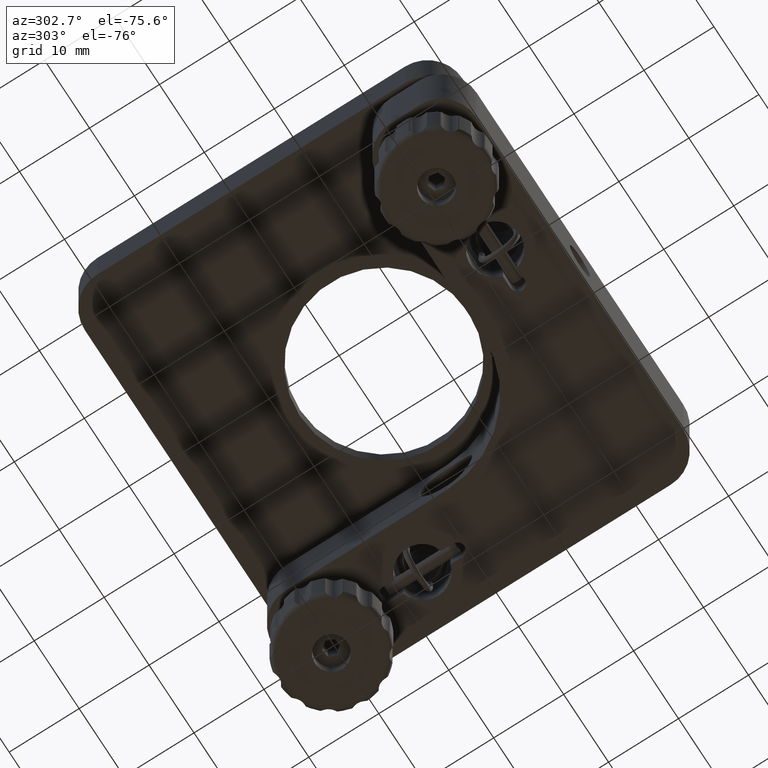
[diagram: clean part render]
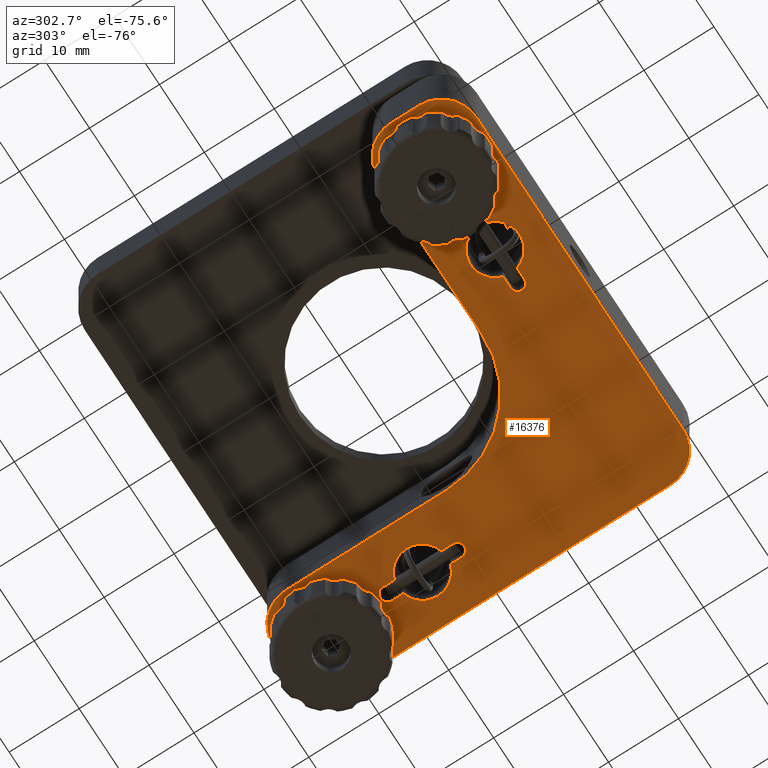
[diagram: same view with one face highlighted and labeled with its STEP entity id]
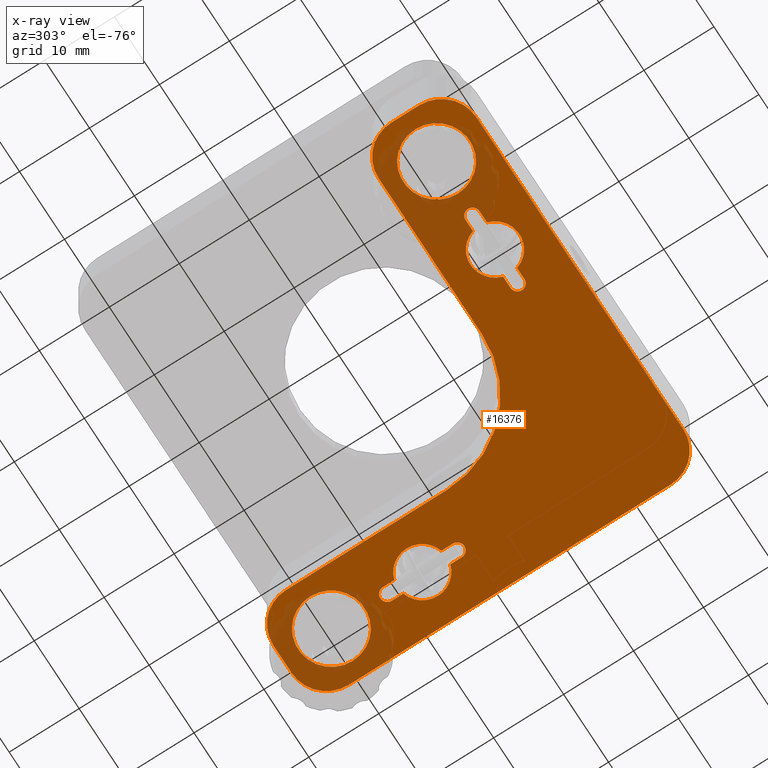
[diagram: x-ray of the same camera — body ghosted, the highlighted face saturated]
A machine part, auxiliary view. The second image highlights one B-rep face of the part: STEP entity #16376.
The next image is the same camera in x-ray: the body ghosted, the highlighted face saturated — about 13% of this face is hidden behind the body in this view.
In plain terms, the highlighted planar face has unit normal (0, 0, 1).
Its self-contained STEP definition (entity closure, byte-faithful):
#22 = EDGE_CURVE ( 'NONE', #12417, #8681, #11562, .T. ) ;
#112 = VERTEX_POINT ( 'NONE', #1410 ) ;
#124 = AXIS2_PLACEMENT_3D ( 'NONE', #11459, #4865, #14301 ) ;
#166 = CARTESIAN_POINT ( 'NONE',  ( -12.99999999999998800, -19.99999999999999600, -15.00000000000000400 ) ) ;
#200 = CARTESIAN_POINT ( 'NONE',  ( 22.00000000000000400, 4.645898033750316200, -15.00000000000000400 ) ) ;
#262 = DIRECTION ( 'NONE',  ( 0.0000000000000000000, 0.0000000000000000000, 1.000000000000000000 ) ) ;
#332 = VECTOR ( 'NONE', #16963, 1000.000000000000000 ) ;
#419 = CIRCLE ( 'NONE', #3806, 4.750000000000000900 ) ;
#450 = CIRCLE ( 'NONE', #9116, 1.000000000000004400 ) ;
#525 = ORIENTED_EDGE ( 'NONE', *, *, #4595, .T. ) ;
#621 = DIRECTION ( 'NONE',  ( -1.000000000000000000, 0.0000000000000000000, 0.0000000000000000000 ) ) ;
#775 = DIRECTION ( 'NONE',  ( -1.508455196501573600E-016, 1.000000000000000000, -0.0000000000000000000 ) ) ;
#782 = CARTESIAN_POINT ( 'NONE',  ( 19.00000000000003200, 28.00000000000000000, -15.00000000000000400 ) ) ;
#846 = ORIENTED_EDGE ( 'NONE', *, *, #3443, .T. ) ;
#1038 = DIRECTION ( 'NONE',  ( 0.0000000000000000000, 0.0000000000000000000, 1.000000000000000000 ) ) ;
#1047 = VECTOR ( 'NONE', #6039, 1000.000000000000000 ) ;
#1073 = DIRECTION ( 'NONE',  ( 1.508455196501573900E-016, -1.000000000000000000, 0.0000000000000000000 ) ) ;
#1075 = CARTESIAN_POINT ( 'NONE',  ( -2.999999999999988900, -21.00000000000000400, -15.00000000000000400 ) ) ;
#1093 = CARTESIAN_POINT ( 'NONE',  ( 17.50000000000000400, 8.000000000000000000, -15.00000000000000400 ) ) ;
#1144 = CARTESIAN_POINT ( 'NONE',  ( -2.999999999999992500, -22.00000000000000700, -15.00000000000000400 ) ) ;
#1147 = CARTESIAN_POINT ( 'NONE',  ( -13.99999999999999500, -21.00000000000000000, -15.00000000000000400 ) ) ;
#1187 = ORIENTED_EDGE ( 'NONE', *, *, #11311, .T. ) ;
#1201 = CARTESIAN_POINT ( 'NONE',  ( -22.99999999999995400, -14.00000000000000200, -15.00000000000000400 ) ) ;
#1370 = CARTESIAN_POINT ( 'NONE',  ( 22.00000000000000400, 13.00000000000000200, -15.00000000000000400 ) ) ;
#1382 = CIRCLE ( 'NONE', #9381, 5.000000000000000900 ) ;
#1385 = VERTEX_POINT ( 'NONE', #9310 ) ;
#1391 = AXIS2_PLACEMENT_3D ( 'NONE', #10675, #262, #4211 ) ;
#1410 = CARTESIAN_POINT ( 'NONE',  ( -12.99999999999999500, -22.00000000000000700, -15.00000000000000400 ) ) ;
#1452 = CARTESIAN_POINT ( 'NONE',  ( 21.00000000000000400, 8.000000000000000000, -15.00000000000000400 ) ) ;
#1498 = LINE ( 'NONE', #6520, #13010 ) ;
#1511 = DIRECTION ( 'NONE',  ( 1.000000000000000000, 0.0000000000000000000, 0.0000000000000000000 ) ) ;
#1544 = CARTESIAN_POINT ( 'NONE',  ( -11.35410196624967200, -19.99999999999999600, -15.00000000000000400 ) ) ;
#1550 = VERTEX_POINT ( 'NONE', #13739 ) ;
#1621 = ORIENTED_EDGE ( 'NONE', *, *, #8783, .F. ) ;
#1623 = AXIS2_PLACEMENT_3D ( 'NONE', #1075, #2245, #4938 ) ;
#1804 = DIRECTION ( 'NONE',  ( 0.0000000000000000000, -1.000000000000000000, 0.0000000000000000000 ) ) ;
#1828 = EDGE_CURVE ( 'NONE', #3877, #8375, #2706, .T. ) ;
#1874 = CARTESIAN_POINT ( 'NONE',  ( -4.645898033750305500, -22.00000000000000700, -15.00000000000000400 ) ) ;
#1905 = ORIENTED_EDGE ( 'NONE', *, *, #2875, .F. ) ;
#2015 = AXIS2_PLACEMENT_3D ( 'NONE', #12715, #12757, #5884 ) ;
#2023 = CARTESIAN_POINT ( 'NONE',  ( -7.999999999999989300, -21.00000000000000400, -15.00000000000000400 ) ) ;
#2119 = CARTESIAN_POINT ( 'NONE',  ( 14.00000000000000000, 1.901779485492735500E-015, -15.00000000000000400 ) ) ;
#2142 = VECTOR ( 'NONE', #15661, 1000.000000000000000 ) ;
#2147 = VERTEX_POINT ( 'NONE', #15147 ) ;
#2180 = EDGE_CURVE ( 'NONE', #4544, #12417, #6187, .T. ) ;
#2196 = CARTESIAN_POINT ( 'NONE',  ( 28.00000000000001100, -22.99999999999996100, -15.00000000000000400 ) ) ;
#2245 = DIRECTION ( 'NONE',  ( 0.0000000000000000000, 0.0000000000000000000, -1.000000000000000000 ) ) ;
#2419 = VERTEX_POINT ( 'NONE', #2524 ) ;
#2524 = CARTESIAN_POINT ( 'NONE',  ( -2.999999999999985300, -20.00000000000000400, -15.00000000000000400 ) ) ;
#2612 = VERTEX_POINT ( 'NONE', #10203 ) ;
#2706 = CIRCLE ( 'NONE', #14602, 3.499999999999999600 ) ;
#2770 = VECTOR ( 'NONE', #8584, 1000.000000000000000 ) ;
#2875 = EDGE_CURVE ( 'NONE', #13968, #5288, #9495, .T. ) ;
#2886 = DIRECTION ( 'NONE',  ( 0.0000000000000000000, 0.0000000000000000000, 1.000000000000000000 ) ) ;
#2951 = CARTESIAN_POINT ( 'NONE',  ( -2.999999999999992500, -22.00000000000000700, -15.00000000000000400 ) ) ;
#2998 = FACE_OUTER_BOUND ( 'NONE', #6918, .T. ) ;
#3006 = ORIENTED_EDGE ( 'NONE', *, *, #1828, .T. ) ;
#3029 = VERTEX_POINT ( 'NONE', #1093 ) ;
#3065 = AXIS2_PLACEMENT_3D ( 'NONE', #13152, #9149, #13205 ) ;
#3076 = PLANE ( 'NONE',  #15030 ) ;
#3099 = CIRCLE ( 'NONE', #14268, 4.750000000000000900 ) ;
#3242 = ORIENTED_EDGE ( 'NONE', *, *, #8921, .F. ) ;
#3310 = CIRCLE ( 'NONE', #16282, 4.750000000000000900 ) ;
#3351 = EDGE_CURVE ( 'NONE', #112, #13968, #450, .T. ) ;
#3385 = DIRECTION ( 'NONE',  ( 0.0000000000000000000, 0.0000000000000000000, 1.000000000000000000 ) ) ;
#3404 = VECTOR ( 'NONE', #14056, 1000.000000000000000 ) ;
#3443 = EDGE_CURVE ( 'NONE', #8375, #10146, #7614, .T. ) ;
#3576 = VERTEX_POINT ( 'NONE', #1201 ) ;
#3702 = VERTEX_POINT ( 'NONE', #1144 ) ;
#3791 = CARTESIAN_POINT ( 'NONE',  ( 16.25000000000000400, 21.00000000000000000, -15.00000000000000400 ) ) ;
#3806 = AXIS2_PLACEMENT_3D ( 'NONE', #15682, #4964, #5012 ) ;
#3823 = EDGE_CURVE ( 'NONE', #3702, #14275, #12366, .T. ) ;
#3853 = CIRCLE ( 'NONE', #8201, 4.750000000000000900 ) ;
#3877 = VERTEX_POINT ( 'NONE', #200 ) ;
#4052 = LINE ( 'NONE', #15559, #16570 ) ;
#4062 = ORIENTED_EDGE ( 'NONE', *, *, #7054, .F. ) ;
#4211 = DIRECTION ( 'NONE',  ( 1.000000000000000000, 0.0000000000000000000, 0.0000000000000000000 ) ) ;
#4327 = AXIS2_PLACEMENT_3D ( 'NONE', #13353, #6685, #7992 ) ;
#4376 = EDGE_LOOP ( 'NONE', ( #14537, #525, #16865, #15630, #1621, #3006, #846, #7059, #13937, #15407 ) ) ;
#4384 = ORIENTED_EDGE ( 'NONE', *, *, #2180, .F. ) ;
#4480 = LINE ( 'NONE', #16915, #3404 ) ;
#4505 = DIRECTION ( 'NONE',  ( -1.000000000000000000, 0.0000000000000000000, 0.0000000000000000000 ) ) ;
#4544 = VERTEX_POINT ( 'NONE', #7882 ) ;
#4559 = VERTEX_POINT ( 'NONE', #15904 ) ;
#4595 = EDGE_CURVE ( 'NONE', #3029, #12052, #14459, .T. ) ;
#4696 = DIRECTION ( 'NONE',  ( 1.000000000000000000, 0.0000000000000000000, 0.0000000000000000000 ) ) ;
#4803 = AXIS2_PLACEMENT_3D ( 'NONE', #9839, #15236, #15183 ) ;
#4865 = DIRECTION ( 'NONE',  ( 0.0000000000000000000, 0.0000000000000000000, -1.000000000000000000 ) ) ;
#4902 = FACE_BOUND ( 'NONE', #4376, .T. ) ;
#4938 = DIRECTION ( 'NONE',  ( -1.000000000000000000, 0.0000000000000000000, 0.0000000000000000000 ) ) ;
#4964 = DIRECTION ( 'NONE',  ( 0.0000000000000000000, 0.0000000000000000000, 1.000000000000000000 ) ) ;
#5012 = DIRECTION ( 'NONE',  ( 1.000000000000000000, 0.0000000000000000000, 0.0000000000000000000 ) ) ;
#5273 = CARTESIAN_POINT ( 'NONE',  ( -2.999999999999985300, -20.00000000000000400, -15.00000000000000400 ) ) ;
#5288 = VERTEX_POINT ( 'NONE', #166 ) ;
#5298 = EDGE_CURVE ( 'NONE', #10801, #2147, #14678, .T. ) ;
#5463 = DIRECTION ( 'NONE',  ( -1.000000000000000000, 0.0000000000000000000, 0.0000000000000000000 ) ) ;
#5562 = CARTESIAN_POINT ( 'NONE',  ( 22.99999999999997200, 28.00000000000000000, -15.00000000000000400 ) ) ;
#5614 = EDGE_CURVE ( 'NONE', #3576, #16857, #7594, .T. ) ;
#5666 = CARTESIAN_POINT ( 'NONE',  ( 20.00000000000000400, 11.35410196624968500, -15.00000000000000400 ) ) ;
#5753 = DIRECTION ( 'NONE',  ( 0.0000000000000000000, 0.0000000000000000000, 1.000000000000000000 ) ) ;
#5810 = ORIENTED_EDGE ( 'NONE', *, *, #11919, .T. ) ;
#5824 = VERTEX_POINT ( 'NONE', #17102 ) ;
#5845 = VERTEX_POINT ( 'NONE', #782 ) ;
#5855 = LINE ( 'NONE', #11435, #16049 ) ;
#5884 = DIRECTION ( 'NONE',  ( -1.000000000000000000, 0.0000000000000000000, 0.0000000000000000000 ) ) ;
#5908 = EDGE_CURVE ( 'NONE', #4559, #2419, #11108, .T. ) ;
#5938 = DIRECTION ( 'NONE',  ( -1.000000000000000000, -0.0000000000000000000, -0.0000000000000000000 ) ) ;
#6039 = DIRECTION ( 'NONE',  ( 1.000000000000000000, -6.938893903907227400E-016, -0.0000000000000000000 ) ) ;
#6072 = DIRECTION ( 'NONE',  ( 0.0000000000000000000, 0.0000000000000000000, -1.000000000000000000 ) ) ;
#6101 = CARTESIAN_POINT ( 'NONE',  ( 22.00000000000000400, 11.35410196624968500, -15.00000000000000400 ) ) ;
#6187 = CIRCLE ( 'NONE', #2015, 4.999999999999997300 ) ;
#6255 = DIRECTION ( 'NONE',  ( 1.000000000000000000, 0.0000000000000000000, 0.0000000000000000000 ) ) ;
#6344 = DIRECTION ( 'NONE',  ( 0.0000000000000000000, 0.0000000000000000000, 1.000000000000000000 ) ) ;
#6463 = EDGE_CURVE ( 'NONE', #9058, #13737, #419, .T. ) ;
#6495 = CARTESIAN_POINT ( 'NONE',  ( -16.24999999999998900, -21.00000000000000400, -15.00000000000000400 ) ) ;
#6520 = CARTESIAN_POINT ( 'NONE',  ( 13.99999999999999600, 22.99999999999996400, -15.00000000000000400 ) ) ;
#6627 = AXIS2_PLACEMENT_3D ( 'NONE', #1452, #9566, #1511 ) ;
#6685 = DIRECTION ( 'NONE',  ( 0.0000000000000000000, 0.0000000000000000000, -1.000000000000000000 ) ) ;
#6918 = EDGE_LOOP ( 'NONE', ( #17001, #15932, #8819, #13088, #3242, #15018, #4062, #15244, #4384, #12810, #7693, #10408 ) ) ;
#7046 = ORIENTED_EDGE ( 'NONE', *, *, #17203, .T. ) ;
#7054 = EDGE_CURVE ( 'NONE', #8681, #9747, #7975, .T. ) ;
#7059 = ORIENTED_EDGE ( 'NONE', *, *, #12532, .F. ) ;
#7194 = ORIENTED_EDGE ( 'NONE', *, *, #13577, .T. ) ;
#7310 = VERTEX_POINT ( 'NONE', #1370 ) ;
#7317 = EDGE_CURVE ( 'NONE', #16857, #4544, #11207, .T. ) ;
#7502 = CARTESIAN_POINT ( 'NONE',  ( -27.99999999999998900, -19.00000000000003900, -15.00000000000000400 ) ) ;
#7513 = CIRCLE ( 'NONE', #8580, 1.000000000000000900 ) ;
#7531 = DIRECTION ( 'NONE',  ( 0.0000000000000000000, 0.0000000000000000000, -1.000000000000000000 ) ) ;
#7578 = DIRECTION ( 'NONE',  ( 0.0000000000000000000, 0.0000000000000000000, 1.000000000000000000 ) ) ;
#7594 = CIRCLE ( 'NONE', #13406, 4.999999999999997300 ) ;
#7614 = CIRCLE ( 'NONE', #13939, 3.499999999999999600 ) ;
#7693 = ORIENTED_EDGE ( 'NONE', *, *, #5614, .F. ) ;
#7740 = ORIENTED_EDGE ( 'NONE', *, *, #5908, .F. ) ;
#7882 = CARTESIAN_POINT ( 'NONE',  ( -27.99999999999998900, -22.99999999999996400, -15.00000000000000400 ) ) ;
#7975 = CIRCLE ( 'NONE', #12977, 5.000000000000000900 ) ;
#7992 = DIRECTION ( 'NONE',  ( -1.000000000000000000, 0.0000000000000000000, 0.0000000000000000000 ) ) ;
#8006 = EDGE_CURVE ( 'NONE', #1385, #14275, #8489, .T. ) ;
#8201 = AXIS2_PLACEMENT_3D ( 'NONE', #10910, #14968, #14891 ) ;
#8262 = CIRCLE ( 'NONE', #124, 1.000000000000000900 ) ;
#8375 = VERTEX_POINT ( 'NONE', #8383 ) ;
#8383 = CARTESIAN_POINT ( 'NONE',  ( 24.50000000000000400, 8.000000000000000000, -15.00000000000000400 ) ) ;
#8424 = CARTESIAN_POINT ( 'NONE',  ( 18.99999999999999600, 23.00000000000000000, -15.00000000000000400 ) ) ;
#8460 = VERTEX_POINT ( 'NONE', #9209 ) ;
#8489 = CIRCLE ( 'NONE', #10650, 3.499999999999999600 ) ;
#8558 = DIRECTION ( 'NONE',  ( -0.0000000000000000000, -0.0000000000000000000, -1.000000000000000000 ) ) ;
#8580 = AXIS2_PLACEMENT_3D ( 'NONE', #15481, #7531, #621 ) ;
#8584 = DIRECTION ( 'NONE',  ( 0.0000000000000000000, -1.000000000000000000, 0.0000000000000000000 ) ) ;
#8681 = VERTEX_POINT ( 'NONE', #13589 ) ;
#8783 = EDGE_CURVE ( 'NONE', #3877, #10003, #16778, .T. ) ;
#8819 = ORIENTED_EDGE ( 'NONE', *, *, #12131, .F. ) ;
#8860 = EDGE_CURVE ( 'NONE', #1385, #112, #4052, .T. ) ;
#8887 = EDGE_CURVE ( 'NONE', #1550, #12052, #4480, .T. ) ;
#8921 = EDGE_CURVE ( 'NONE', #8460, #14984, #15746, .T. ) ;
#9058 = VERTEX_POINT ( 'NONE', #6495 ) ;
#9116 = AXIS2_PLACEMENT_3D ( 'NONE', #11328, #6072, #15476 ) ;
#9142 = CARTESIAN_POINT ( 'NONE',  ( 21.00000000000000400, 8.000000000000000000, -15.00000000000000400 ) ) ;
#9149 = DIRECTION ( 'NONE',  ( 0.0000000000000000000, 0.0000000000000000000, 1.000000000000000000 ) ) ;
#9156 = ORIENTED_EDGE ( 'NONE', *, *, #3351, .F. ) ;
#9177 = DIRECTION ( 'NONE',  ( 1.000000000000000000, -6.938893903907227400E-016, -0.0000000000000000000 ) ) ;
#9209 = CARTESIAN_POINT ( 'NONE',  ( 28.00000000000000400, 22.99999999999996800, -15.00000000000000400 ) ) ;
#9269 = FACE_BOUND ( 'NONE', #15374, .T. ) ;
#9310 = CARTESIAN_POINT ( 'NONE',  ( -11.35410196624967400, -22.00000000000000700, -15.00000000000000400 ) ) ;
#9381 = AXIS2_PLACEMENT_3D ( 'NONE', #8424, #5753, #4505 ) ;
#9466 = CARTESIAN_POINT ( 'NONE',  ( 20.00000000000000400, 4.645898033750316200, -15.00000000000000400 ) ) ;
#9482 = VECTOR ( 'NONE', #9177, 1000.000000000000000 ) ;
#9495 = CIRCLE ( 'NONE', #4327, 1.000000000000004400 ) ;
#9566 = DIRECTION ( 'NONE',  ( 0.0000000000000000000, 0.0000000000000000000, 1.000000000000000000 ) ) ;
#9626 = AXIS2_PLACEMENT_3D ( 'NONE', #12535, #8558, #9932 ) ;
#9747 = VERTEX_POINT ( 'NONE', #2196 ) ;
#9839 = CARTESIAN_POINT ( 'NONE',  ( 21.00000000000000400, 8.000000000000000000, -15.00000000000000400 ) ) ;
#9872 = CARTESIAN_POINT ( 'NONE',  ( 19.00000000000003200, 28.00000000000000000, -15.00000000000000400 ) ) ;
#9932 = DIRECTION ( 'NONE',  ( 1.000000000000000000, 0.0000000000000000000, 0.0000000000000000000 ) ) ;
#9963 = CARTESIAN_POINT ( 'NONE',  ( 22.00000000000000400, 13.00000000000000200, -15.00000000000000400 ) ) ;
#10003 = VERTEX_POINT ( 'NONE', #11099 ) ;
#10062 = DIRECTION ( 'NONE',  ( -1.000000000000000000, 0.0000000000000000000, 0.0000000000000000000 ) ) ;
#10146 = VERTEX_POINT ( 'NONE', #6101 ) ;
#10203 = CARTESIAN_POINT ( 'NONE',  ( 25.75000000000000700, 21.00000000000000000, -15.00000000000000400 ) ) ;
#10287 = ORIENTED_EDGE ( 'NONE', *, *, #3823, .F. ) ;
#10334 = CARTESIAN_POINT ( 'NONE',  ( 20.00000000000000400, 13.00000000000000200, -15.00000000000000400 ) ) ;
#10408 = ORIENTED_EDGE ( 'NONE', *, *, #12605, .F. ) ;
#10457 = DIRECTION ( 'NONE',  ( 1.000000000000000000, 0.0000000000000000000, 0.0000000000000000000 ) ) ;
#10498 = LINE ( 'NONE', #5273, #9482 ) ;
#10578 = EDGE_CURVE ( 'NONE', #14984, #5845, #13216, .T. ) ;
#10619 = CARTESIAN_POINT ( 'NONE',  ( 20.00000000000000400, 13.00000000000000200, -15.00000000000000400 ) ) ;
#10644 = CARTESIAN_POINT ( 'NONE',  ( 21.00000000000000400, 21.00000000000000000, -15.00000000000000400 ) ) ;
#10650 = AXIS2_PLACEMENT_3D ( 'NONE', #2023, #3385, #12724 ) ;
#10675 = CARTESIAN_POINT ( 'NONE',  ( -7.999999999999989300, -21.00000000000000400, -15.00000000000000400 ) ) ;
#10801 = VERTEX_POINT ( 'NONE', #2119 ) ;
#10910 = CARTESIAN_POINT ( 'NONE',  ( -20.99999999999998900, -21.00000000000000400, -15.00000000000000400 ) ) ;
#11013 = VERTEX_POINT ( 'NONE', #3791 ) ;
#11016 = LINE ( 'NONE', #15624, #332 ) ;
#11099 = CARTESIAN_POINT ( 'NONE',  ( 22.00000000000000400, 2.999999999999999600, -15.00000000000000400 ) ) ;
#11108 = LINE ( 'NONE', #16683, #1047 ) ;
#11136 = EDGE_LOOP ( 'NONE', ( #5810, #15821, #1905, #9156, #16244, #15440, #10287, #15356, #7740 ) ) ;
#11148 = EDGE_CURVE ( 'NONE', #9747, #8460, #5855, .T. ) ;
#11207 = LINE ( 'NONE', #17126, #12443 ) ;
#11311 = EDGE_CURVE ( 'NONE', #2612, #11013, #3099, .T. ) ;
#11328 = CARTESIAN_POINT ( 'NONE',  ( -12.99999999999999100, -21.00000000000000000, -15.00000000000000400 ) ) ;
#11342 = CARTESIAN_POINT ( 'NONE',  ( 23.00000000000001100, -23.00000000000000000, -15.00000000000000400 ) ) ;
#11435 = CARTESIAN_POINT ( 'NONE',  ( 28.00000000000000400, 22.99999999999996400, -15.00000000000000400 ) ) ;
#11439 = CIRCLE ( 'NONE', #1623, 1.000000000000000900 ) ;
#11459 = CARTESIAN_POINT ( 'NONE',  ( 21.00000000000000400, 2.999999999999999600, -15.00000000000000400 ) ) ;
#11562 = LINE ( 'NONE', #11701, #12395 ) ;
#11581 = LINE ( 'NONE', #10334, #2142 ) ;
#11655 = EDGE_CURVE ( 'NONE', #16426, #7310, #7513, .T. ) ;
#11701 = CARTESIAN_POINT ( 'NONE',  ( -22.99999999999995400, -28.00000000000000000, -15.00000000000000400 ) ) ;
#11760 = EDGE_CURVE ( 'NONE', #2419, #3702, #11439, .T. ) ;
#11919 = EDGE_CURVE ( 'NONE', #4559, #16615, #12879, .T. ) ;
#11966 = DIRECTION ( 'NONE',  ( 0.0000000000000000000, 0.0000000000000000000, 1.000000000000000000 ) ) ;
#12052 = VERTEX_POINT ( 'NONE', #9466 ) ;
#12131 = EDGE_CURVE ( 'NONE', #5845, #5824, #1382, .T. ) ;
#12187 = VECTOR ( 'NONE', #5463, 1000.000000000000000 ) ;
#12236 = DIRECTION ( 'NONE',  ( -1.000000000000000000, 0.0000000000000000000, 0.0000000000000000000 ) ) ;
#12366 = LINE ( 'NONE', #2951, #12187 ) ;
#12393 = CARTESIAN_POINT ( 'NONE',  ( -3.003590182049984500E-017, 0.0000000000000000000, -15.00000000000000400 ) ) ;
#12395 = VECTOR ( 'NONE', #14450, 1000.000000000000000 ) ;
#12417 = VERTEX_POINT ( 'NONE', #15337 ) ;
#12443 = VECTOR ( 'NONE', #1804, 1000.000000000000000 ) ;
#12453 = CARTESIAN_POINT ( 'NONE',  ( 21.00000000000000400, 21.00000000000000000, -15.00000000000000400 ) ) ;
#12532 = EDGE_CURVE ( 'NONE', #7310, #10146, #11016, .T. ) ;
#12535 = CARTESIAN_POINT ( 'NONE',  ( -3.003590182049984500E-017, 0.0000000000000000000, -15.00000000000000400 ) ) ;
#12605 = EDGE_CURVE ( 'NONE', #2147, #3576, #12867, .T. ) ;
#12671 = DIRECTION ( 'NONE',  ( 0.0000000000000000000, 0.0000000000000000000, 1.000000000000000000 ) ) ;
#12715 = CARTESIAN_POINT ( 'NONE',  ( -22.99999999999999300, -23.00000000000000000, -15.00000000000000400 ) ) ;
#12724 = DIRECTION ( 'NONE',  ( 1.000000000000000000, 0.0000000000000000000, 0.0000000000000000000 ) ) ;
#12757 = DIRECTION ( 'NONE',  ( 0.0000000000000000000, 0.0000000000000000000, 1.000000000000000000 ) ) ;
#12766 = DIRECTION ( 'NONE',  ( -1.000000000000000000, -0.0000000000000000000, -0.0000000000000000000 ) ) ;
#12810 = ORIENTED_EDGE ( 'NONE', *, *, #7317, .F. ) ;
#12867 = LINE ( 'NONE', #12996, #13506 ) ;
#12879 = CIRCLE ( 'NONE', #1391, 3.499999999999999600 ) ;
#12977 = AXIS2_PLACEMENT_3D ( 'NONE', #11342, #7578, #6255 ) ;
#12996 = CARTESIAN_POINT ( 'NONE',  ( -22.99999999999995400, -14.00000000000000000, -15.00000000000000400 ) ) ;
#13010 = VECTOR ( 'NONE', #1073, 1000.000000000000000 ) ;
#13076 = DIRECTION ( 'NONE',  ( 1.000000000000000000, 0.0000000000000000000, 0.0000000000000000000 ) ) ;
#13088 = ORIENTED_EDGE ( 'NONE', *, *, #10578, .F. ) ;
#13098 = EDGE_CURVE ( 'NONE', #13489, #3029, #15760, .T. ) ;
#13105 = CARTESIAN_POINT ( 'NONE',  ( -22.99999999999999300, -19.00000000000000000, -15.00000000000000400 ) ) ;
#13152 = CARTESIAN_POINT ( 'NONE',  ( 23.00000000000000700, 23.00000000000000000, -15.00000000000000400 ) ) ;
#13205 = DIRECTION ( 'NONE',  ( -1.000000000000000000, 0.0000000000000000000, 0.0000000000000000000 ) ) ;
#13216 = LINE ( 'NONE', #9872, #15937 ) ;
#13353 = CARTESIAN_POINT ( 'NONE',  ( -12.99999999999999100, -21.00000000000000000, -15.00000000000000400 ) ) ;
#13406 = AXIS2_PLACEMENT_3D ( 'NONE', #13105, #2886, #12236 ) ;
#13489 = VERTEX_POINT ( 'NONE', #5666 ) ;
#13506 = VECTOR ( 'NONE', #12766, 1000.000000000000000 ) ;
#13577 = EDGE_CURVE ( 'NONE', #11013, #2612, #3310, .T. ) ;
#13589 = CARTESIAN_POINT ( 'NONE',  ( 22.99999999999997200, -27.99999999999999600, -15.00000000000000400 ) ) ;
#13737 = VERTEX_POINT ( 'NONE', #13990 ) ;
#13739 = CARTESIAN_POINT ( 'NONE',  ( 20.00000000000000400, 2.999999999999999600, -15.00000000000000400 ) ) ;
#13779 = DIRECTION ( 'NONE',  ( 0.0000000000000000000, 0.0000000000000000000, 1.000000000000000000 ) ) ;
#13937 = ORIENTED_EDGE ( 'NONE', *, *, #11655, .F. ) ;
#13939 = AXIS2_PLACEMENT_3D ( 'NONE', #16994, #6344, #13076 ) ;
#13968 = VERTEX_POINT ( 'NONE', #1147 ) ;
#13990 = CARTESIAN_POINT ( 'NONE',  ( -25.74999999999999300, -21.00000000000000400, -15.00000000000000400 ) ) ;
#14045 = EDGE_CURVE ( 'NONE', #5824, #10801, #1498, .T. ) ;
#14056 = DIRECTION ( 'NONE',  ( -0.0000000000000000000, 1.000000000000000000, -0.0000000000000000000 ) ) ;
#14074 = EDGE_CURVE ( 'NONE', #5288, #16615, #10498, .T. ) ;
#14268 = AXIS2_PLACEMENT_3D ( 'NONE', #10644, #11966, #14681 ) ;
#14275 = VERTEX_POINT ( 'NONE', #1874 ) ;
#14301 = DIRECTION ( 'NONE',  ( -1.000000000000000000, 0.0000000000000000000, 0.0000000000000000000 ) ) ;
#14450 = DIRECTION ( 'NONE',  ( 1.000000000000000000, 7.542275982507868200E-017, 0.0000000000000000000 ) ) ;
#14459 = CIRCLE ( 'NONE', #6627, 3.499999999999999600 ) ;
#14537 = ORIENTED_EDGE ( 'NONE', *, *, #13098, .T. ) ;
#14602 = AXIS2_PLACEMENT_3D ( 'NONE', #9142, #1038, #10457 ) ;
#14678 = CIRCLE ( 'NONE', #9626, 14.00000000000000000 ) ;
#14681 = DIRECTION ( 'NONE',  ( 1.000000000000000000, 0.0000000000000000000, 0.0000000000000000000 ) ) ;
#14891 = DIRECTION ( 'NONE',  ( 1.000000000000000000, 0.0000000000000000000, 0.0000000000000000000 ) ) ;
#14968 = DIRECTION ( 'NONE',  ( 0.0000000000000000000, 0.0000000000000000000, 1.000000000000000000 ) ) ;
#14984 = VERTEX_POINT ( 'NONE', #5562 ) ;
#14999 = EDGE_LOOP ( 'NONE', ( #1187, #7194 ) ) ;
#15018 = ORIENTED_EDGE ( 'NONE', *, *, #11148, .F. ) ;
#15030 = AXIS2_PLACEMENT_3D ( 'NONE', #12393, #13779, #16216 ) ;
#15147 = CARTESIAN_POINT ( 'NONE',  ( -3.003590182049984500E-017, -14.00000000000000000, -15.00000000000000400 ) ) ;
#15183 = DIRECTION ( 'NONE',  ( 1.000000000000000000, 0.0000000000000000000, 0.0000000000000000000 ) ) ;
#15236 = DIRECTION ( 'NONE',  ( 0.0000000000000000000, 0.0000000000000000000, 1.000000000000000000 ) ) ;
#15244 = ORIENTED_EDGE ( 'NONE', *, *, #22, .F. ) ;
#15296 = EDGE_CURVE ( 'NONE', #10003, #1550, #8262, .T. ) ;
#15337 = CARTESIAN_POINT ( 'NONE',  ( -22.99999999999995400, -28.00000000000000000, -15.00000000000000400 ) ) ;
#15356 = ORIENTED_EDGE ( 'NONE', *, *, #11760, .F. ) ;
#15374 = EDGE_LOOP ( 'NONE', ( #16636, #7046 ) ) ;
#15382 = EDGE_CURVE ( 'NONE', #13489, #16426, #11581, .T. ) ;
#15407 = ORIENTED_EDGE ( 'NONE', *, *, #15382, .F. ) ;
#15440 = ORIENTED_EDGE ( 'NONE', *, *, #8006, .T. ) ;
#15476 = DIRECTION ( 'NONE',  ( -1.000000000000000000, 0.0000000000000000000, 0.0000000000000000000 ) ) ;
#15481 = CARTESIAN_POINT ( 'NONE',  ( 21.00000000000000400, 13.00000000000000200, -15.00000000000000400 ) ) ;
#15559 = CARTESIAN_POINT ( 'NONE',  ( -2.999999999999992500, -22.00000000000000700, -15.00000000000000400 ) ) ;
#15624 = CARTESIAN_POINT ( 'NONE',  ( 22.00000000000000400, 13.00000000000000200, -15.00000000000000400 ) ) ;
#15630 = ORIENTED_EDGE ( 'NONE', *, *, #15296, .F. ) ;
#15661 = DIRECTION ( 'NONE',  ( -0.0000000000000000000, 1.000000000000000000, -0.0000000000000000000 ) ) ;
#15682 = CARTESIAN_POINT ( 'NONE',  ( -20.99999999999998900, -21.00000000000000400, -15.00000000000000400 ) ) ;
#15746 = CIRCLE ( 'NONE', #3065, 4.999999999999997300 ) ;
#15760 = CIRCLE ( 'NONE', #4803, 3.499999999999999600 ) ;
#15821 = ORIENTED_EDGE ( 'NONE', *, *, #14074, .F. ) ;
#15904 = CARTESIAN_POINT ( 'NONE',  ( -4.645898033750307300, -20.00000000000000400, -15.00000000000000400 ) ) ;
#15932 = ORIENTED_EDGE ( 'NONE', *, *, #14045, .F. ) ;
#15937 = VECTOR ( 'NONE', #5938, 1000.000000000000000 ) ;
#16049 = VECTOR ( 'NONE', #775, 1000.000000000000000 ) ;
#16216 = DIRECTION ( 'NONE',  ( 1.000000000000000000, 0.0000000000000000000, -0.0000000000000000000 ) ) ;
#16244 = ORIENTED_EDGE ( 'NONE', *, *, #8860, .F. ) ;
#16282 = AXIS2_PLACEMENT_3D ( 'NONE', #12453, #12671, #4696 ) ;
#16376 = ADVANCED_FACE ( 'NONE', ( #16999, #9269, #4902, #16566, #2998 ), #3076, .F. ) ;
#16426 = VERTEX_POINT ( 'NONE', #10619 ) ;
#16566 = FACE_BOUND ( 'NONE', #14999, .T. ) ;
#16570 = VECTOR ( 'NONE', #10062, 1000.000000000000000 ) ;
#16615 = VERTEX_POINT ( 'NONE', #1544 ) ;
#16636 = ORIENTED_EDGE ( 'NONE', *, *, #6463, .T. ) ;
#16683 = CARTESIAN_POINT ( 'NONE',  ( -2.999999999999985300, -20.00000000000000400, -15.00000000000000400 ) ) ;
#16778 = LINE ( 'NONE', #9963, #2770 ) ;
#16857 = VERTEX_POINT ( 'NONE', #7502 ) ;
#16865 = ORIENTED_EDGE ( 'NONE', *, *, #8887, .F. ) ;
#16915 = CARTESIAN_POINT ( 'NONE',  ( 20.00000000000000400, 13.00000000000000200, -15.00000000000000400 ) ) ;
#16963 = DIRECTION ( 'NONE',  ( 0.0000000000000000000, -1.000000000000000000, 0.0000000000000000000 ) ) ;
#16994 = CARTESIAN_POINT ( 'NONE',  ( 21.00000000000000400, 8.000000000000000000, -15.00000000000000400 ) ) ;
#16999 = FACE_BOUND ( 'NONE', #11136, .T. ) ;
#17001 = ORIENTED_EDGE ( 'NONE', *, *, #5298, .F. ) ;
#17102 = CARTESIAN_POINT ( 'NONE',  ( 13.99999999999999600, 22.99999999999996400, -15.00000000000000400 ) ) ;
#17126 = CARTESIAN_POINT ( 'NONE',  ( -27.99999999999998900, -19.00000000000003900, -15.00000000000000400 ) ) ;
#17203 = EDGE_CURVE ( 'NONE', #13737, #9058, #3853, .T. ) ;